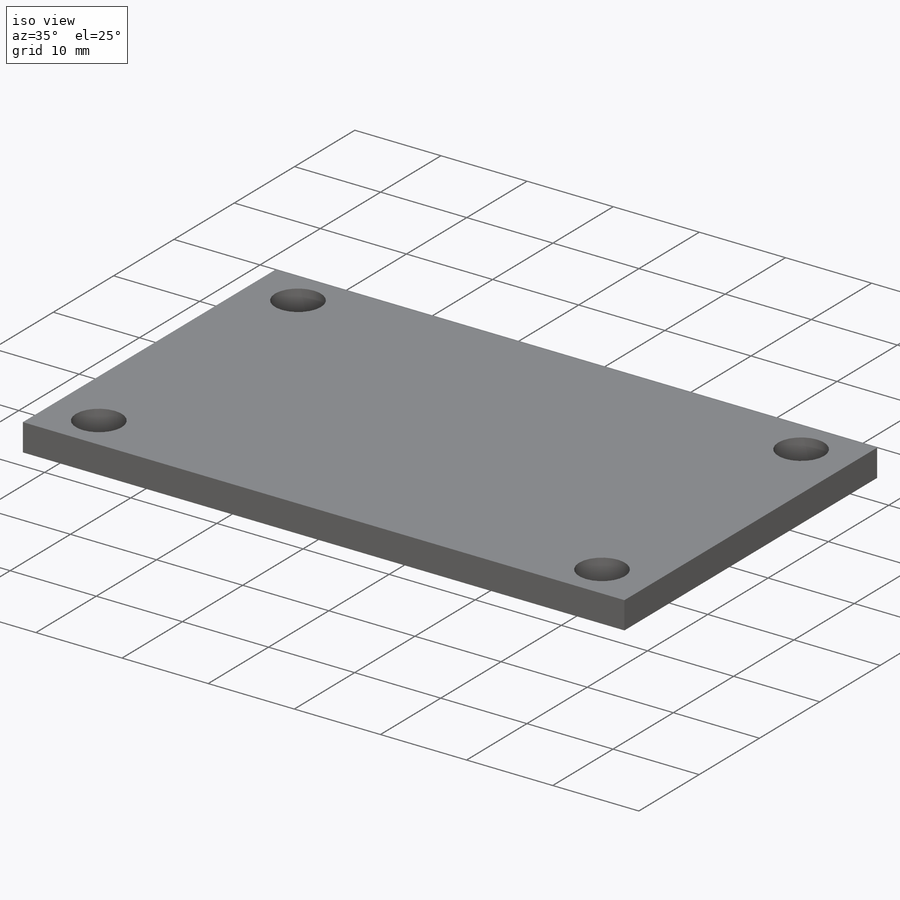
[diagram: iso view]
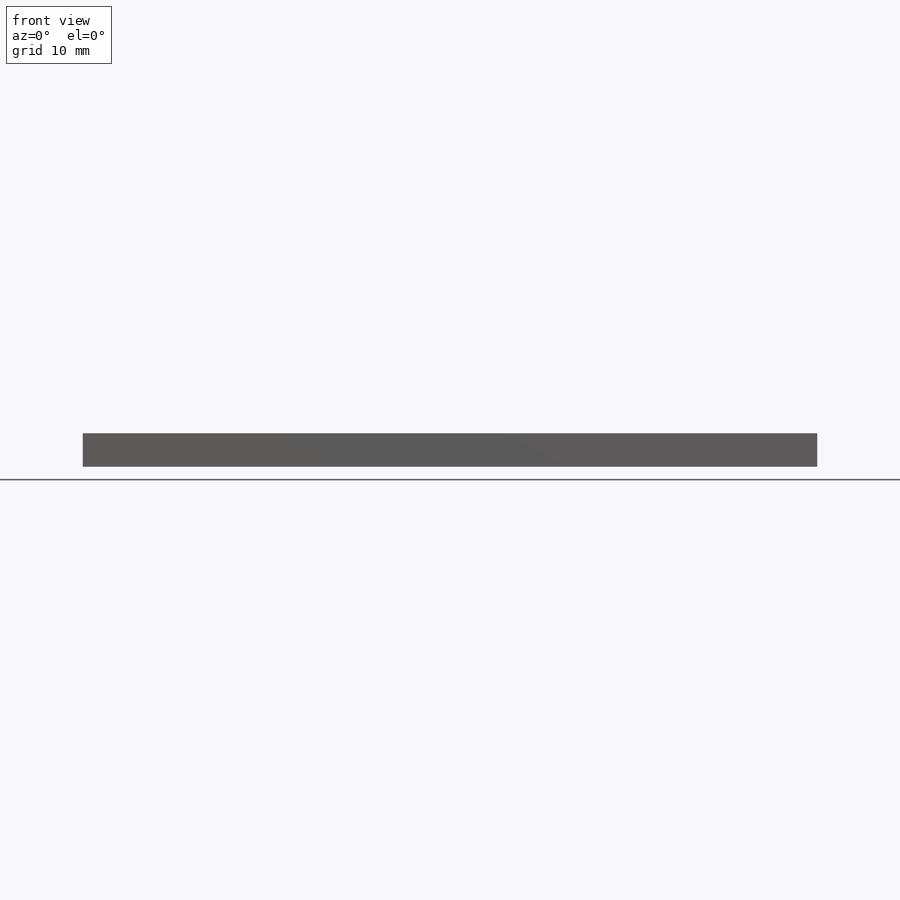
[diagram: front view]
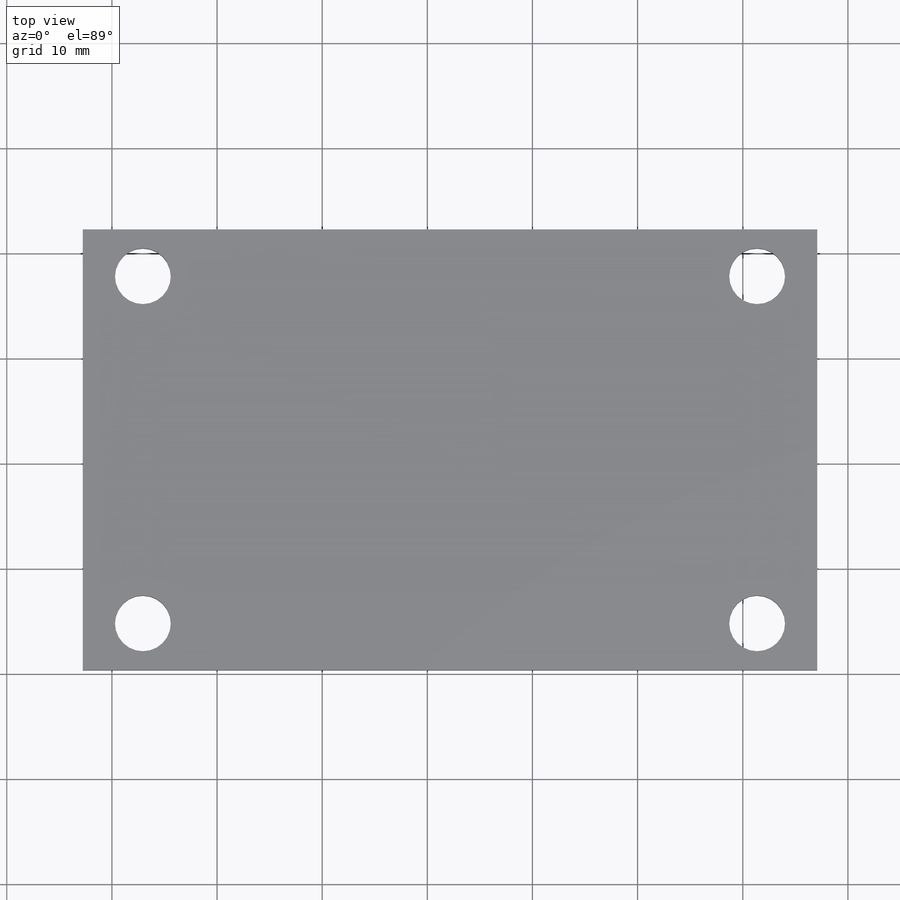
[diagram: top view]
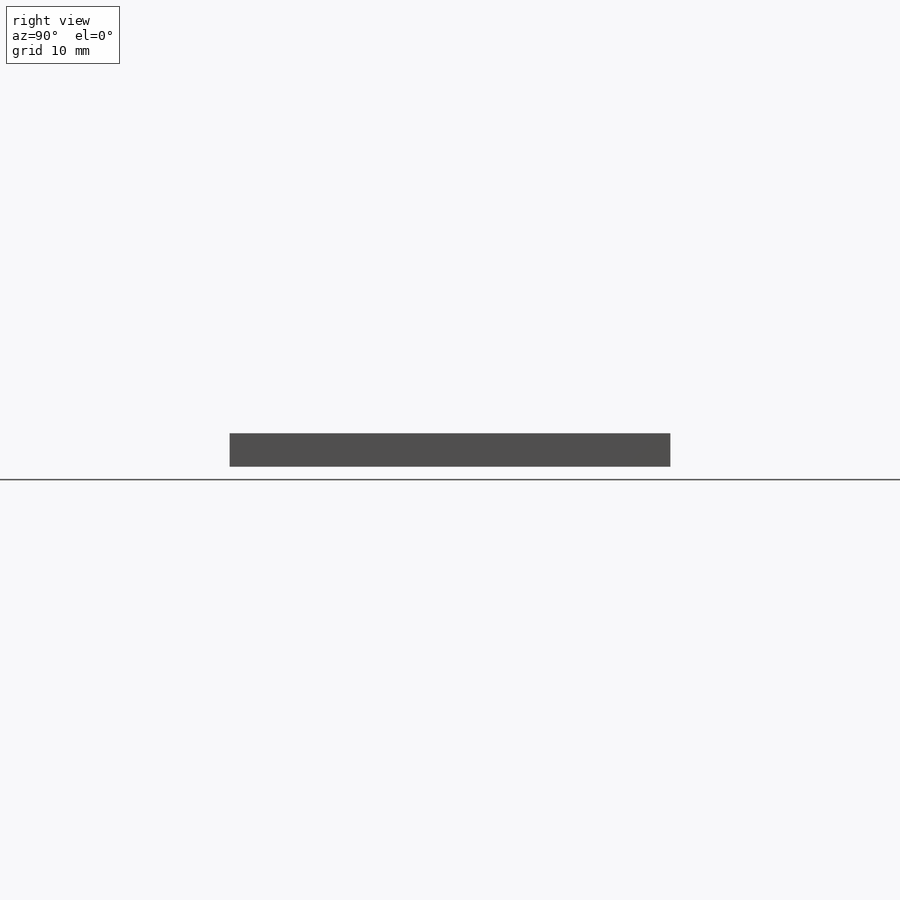
[diagram: right view]
SOLIDWORKS PART (.sldprt)
format: sldprt  version: not decoded by parser v0  size: 235,520 bytes
history: native  units: mm
features: sketch x5, hole x2, material x1, extrude x1, pattern_linear x1 + 1 further entry (+10 scaffold rows collapsed)
feature tree (21):
  scaffold x10  (default folders/planes/origin — collapsed)
  material  "Material <not specified>"
  "Annotations"  RD1=41.91mm RD2=6.35mm RD3=43.18mm RD4=69.85mm
  sketch  "Sketch1"  dims[D1=69.85mm D2=41.91mm D3=40.0mm]
  extrude  "Boss-Extrude1"  Depth=3.175mm
  hole  "F size bit 1/4 Clearance Hole1"  Diameter=5.3086mm Depth=12.7mm
  sketch  "Sketch12"  dims[D1=6.35mm D2=20.955mm D3=58.42mm D4=58.42mm D5=33.02mm D6=33.02mm D7=4.445mm D8=5.715mm]
  sketch  "Sketch11"  dims[hole-wizard template sketch: 46 standard entries collapsed; hole parameters kept: c15.Hole Dia.=5.3086mm c15.Hole Depth=12.7mm c15.D3=~14.816244mm c15.Drill Angle=118.0deg]
  hole  "Tap Drill for M3x0.5 Tap1"  Diameter=2.5mm Depth=2.286mm
  sketch  "Sketch15"  dims[D1=13.335mm D2=3.81mm D3=~3.59029mm]
  sketch  "Sketch14"  dims[hole-wizard template sketch: 47 standard entries collapsed; hole parameters kept: c15.Hole Depth=2.286mm c15.D3=~14.816244mm c15.Drill Angle=118.0deg]
  pattern_linear  "LPattern2"  Count1=2 Count2=2 Spacing1=43.18mm Spacing2=34.29mm
decode coverage: 9 of 9 modeling features carry decoded parameters; 1 rows unclassified (native names shown)
note: ~ marks probable driven/reference dimensions
note: suppression state not decoded; provenance and decode notes live in map.json
